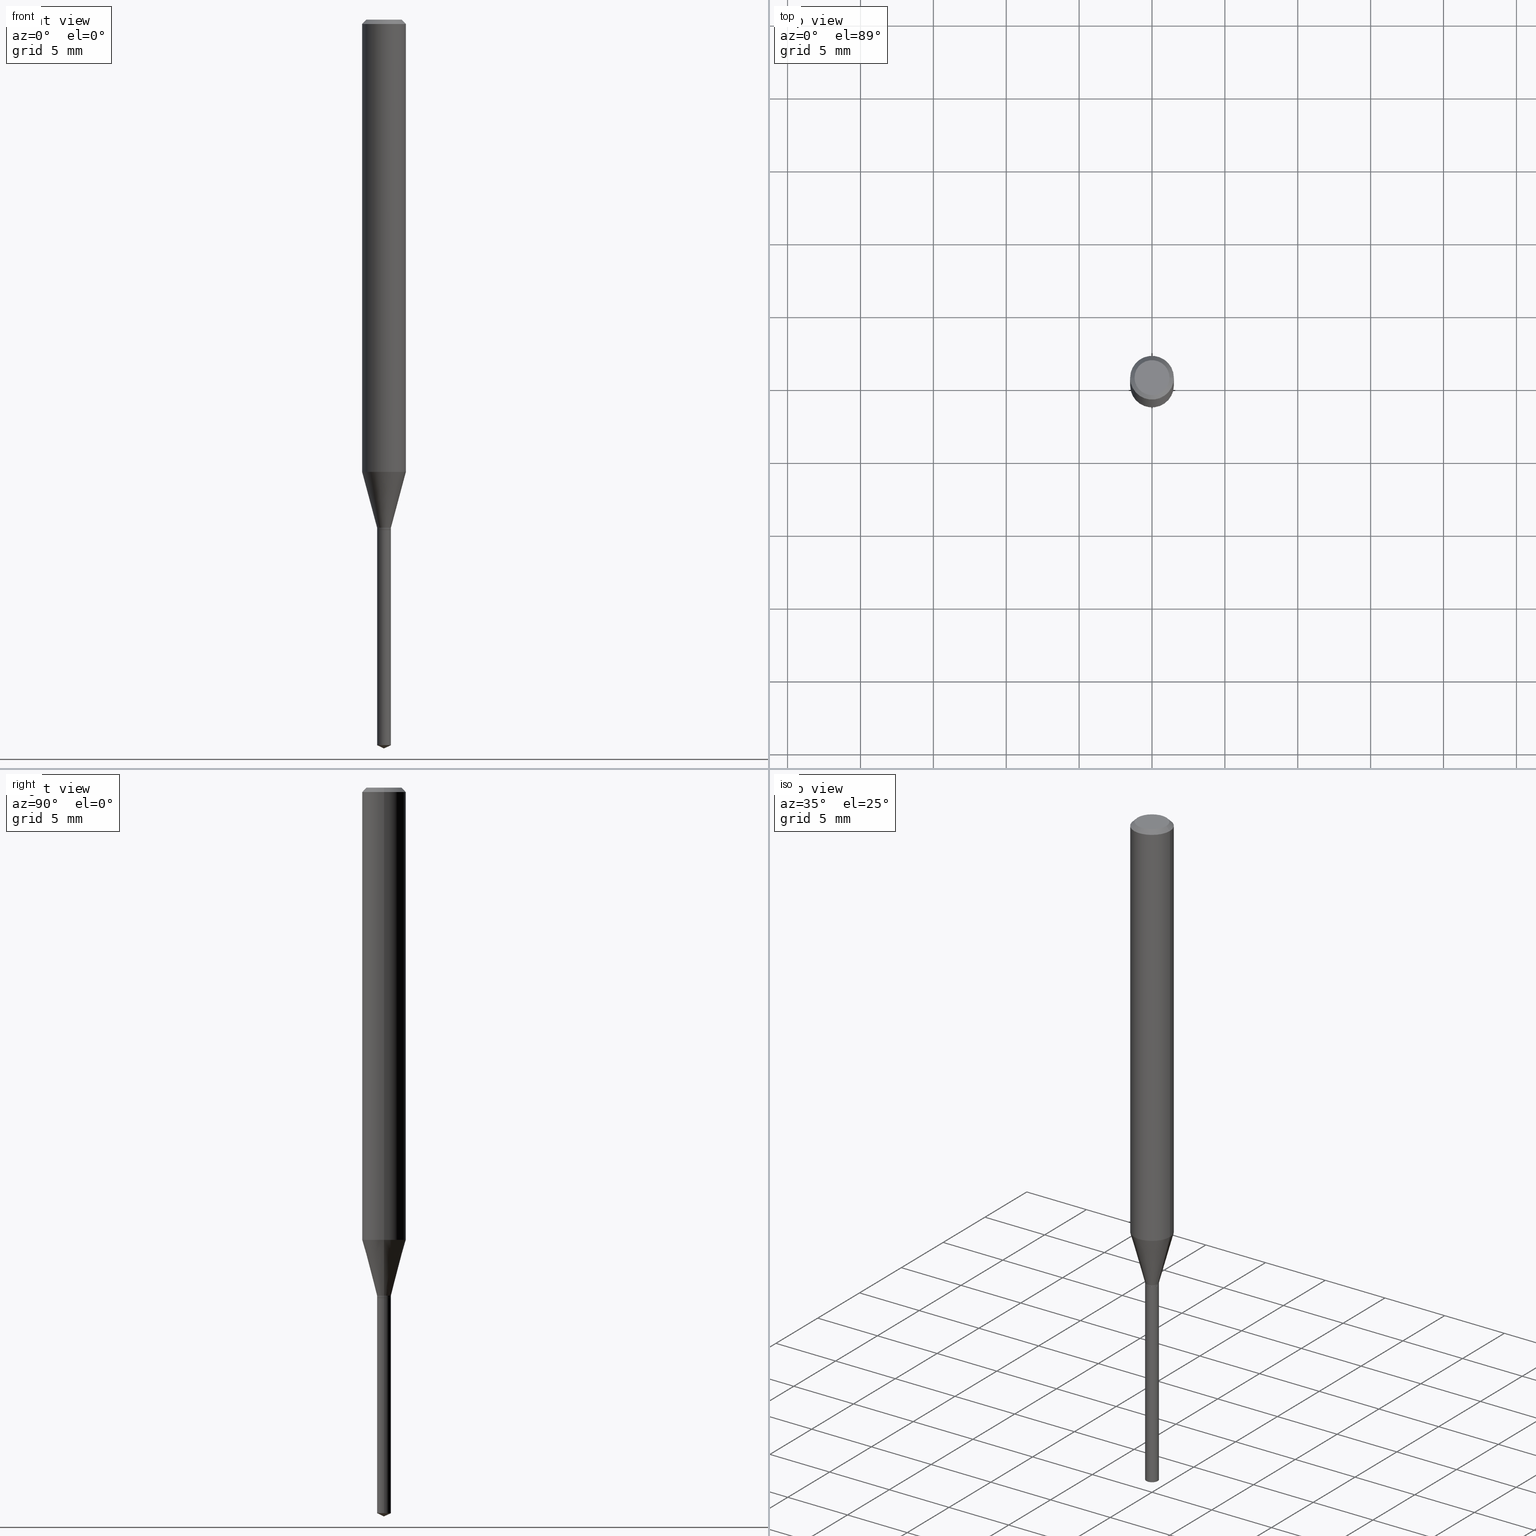
[diagram: canonical four-view strip — front | top / right | iso, engineering-drawing reading convention]
A machine part, canonical four-view strip (front | top / right | iso — engineering-drawing reading convention). The complete STEP part file that produces these views, byte-faithful:
ISO-10303-21;
HEADER;
FILE_DESCRIPTION (( 'STEP AP203' ),
    '1' );
FILE_NAME ('07819.STEP',
    '2024-04-24T03:44:33',
    ( '' ),
    ( '' ),
    'SwSTEP 2.0',
    'SolidWorks 2023',
    '' );
FILE_SCHEMA (( 'CONFIG_CONTROL_DESIGN' ));
ENDSEC;

DATA;
#1 = PERSON_AND_ORGANIZATION ( #255, #261 ) ;
#2 = VERTEX_POINT ( 'NONE', #244 ) ;
#3 = PERSON_AND_ORGANIZATION ( #255, #261 ) ;
#4 = AXIS2_PLACEMENT_3D ( 'NONE', #37, #148, #307 ) ;
#5 = DIRECTION ( 'NONE',  ( -2.445468806185136877E-29, 3.491481338843145188E-15, 1.000000000000000000 ) ) ;
#6 = ADVANCED_FACE ( 'NONE', ( #165 ), #322, .T. ) ;
#7 = VERTEX_POINT ( 'NONE', #313 ) ;
#8 = DATE_AND_TIME ( #380, #439 ) ;
#9 = ORIENTED_EDGE ( 'NONE', *, *, #198, .T. ) ;
#10 = DIRECTION ( 'NONE',  ( 1.000000000000000000, -6.982962677686246989E-15, 0.000000000000000000 ) ) ;
#11 = ORIENTED_EDGE ( 'NONE', *, *, #390, .F. ) ;
#12 = PERSON_AND_ORGANIZATION ( #255, #261 ) ;
#13 = AXIS2_PLACEMENT_3D ( 'NONE', #188, #407, #448 ) ;
#14 = ORIENTED_EDGE ( 'NONE', *, *, #304, .F. ) ;
#15 = CIRCLE ( 'NONE', #467, 0.05905000000000000526 ) ;
#16 = EDGE_CURVE ( 'NONE', #298, #224, #292, .T. ) ;
#17 = ORIENTED_EDGE ( 'NONE', *, *, #304, .T. ) ;
#18 = FACE_OUTER_BOUND ( 'NONE', #332, .T. ) ;
#19 = FACE_OUTER_BOUND ( 'NONE', #272, .T. ) ;
#20 = EDGE_CURVE ( 'NONE', #481, #224, #196, .T. ) ;
#21 = CARTESIAN_POINT ( 'NONE',  ( -0.05905000000000000526, 3.711095515056362547E-16, -0.01181000000000007738 ) ) ;
#22 = DIRECTION ( 'NONE',  ( 1.000000000000000000, -6.982962677686266711E-15, 0.000000000000000000 ) ) ;
#23 = EDGE_LOOP ( 'NONE', ( #286, #131, #60, #392 ) ) ;
#24 = AXIS2_PLACEMENT_3D ( 'NONE', #115, #316, #124 ) ;
#25 = DIRECTION ( 'NONE',  ( -2.445468806185136597E-29, 3.491481338843145583E-15, 1.000000000000000000 ) ) ;
#26 = DIRECTION ( 'NONE',  ( 2.445468806185136597E-29, -3.491481338843145583E-15, -1.000000000000000000 ) ) ;
#27 = CIRCLE ( 'NONE', #308, 0.05905000000000014404 ) ;
#28 = APPLICATION_PROTOCOL_DEFINITION ( 'international standard', 'config_control_design', 1994, #386 ) ;
#29 = MANIFOLD_SOLID_BREP ( 'Body-Move/Copy2[2]', #479 ) ;
#30 = CARTESIAN_POINT ( 'NONE',  ( 0.01870000000000003604, -1.305814020727334220E-16, 9.118450570738417925E-31 ) ) ;
#31 = APPROVAL ( #103, 'UNSPECIFIED' ) ;
#32 = CIRCLE ( 'NONE', #52, 0.04724000000000000421 ) ;
#33 = EDGE_CURVE ( 'NONE', #54, #144, #468, .T. ) ;
#34 = DATE_AND_TIME ( #98, #88 ) ;
#35 = CARTESIAN_POINT ( 'NONE',  ( -0.01870000000000000134, -4.678040645204832139E-15, -1.377900000000000125 ) ) ;
#36 = APPROVAL_STATUS ( 'not_yet_approved' ) ;
#37 = CARTESIAN_POINT ( 'NONE',  ( 3.355916842727862365E-29, -4.791359841294448810E-15, -1.372300000000000075 ) ) ;
#38 = PERSON_AND_ORGANIZATION_ROLE ( 'design_supplier' ) ;
#39 = ORIENTED_EDGE ( 'NONE', *, *, #471, .F. ) ;
#40 = AXIS2_PLACEMENT_3D ( 'NONE', #225, #106, #374 ) ;
#41 = DIRECTION ( 'NONE',  ( -1.000000000000000000, 6.982962677686265922E-15, -4.876176775795935793E-29 ) ) ;
#42 = DIRECTION ( 'NONE',  ( -2.445468806185136877E-29, 3.491481338843145188E-15, 1.000000000000000000 ) ) ;
#43 = CALENDAR_DATE ( 2024, 23, 4 ) ;
#44 = ORIENTED_EDGE ( 'NONE', *, *, #92, .F. ) ;
#45 = DIRECTION ( 'NONE',  ( 2.438088387897960049E-29, -3.491481338843145188E-15, -1.000000000000000000 ) ) ;
#46 = PERSON_AND_ORGANIZATION ( #255, #261 ) ;
#47 = ORIENTED_EDGE ( 'NONE', *, *, #490, .F. ) ;
#48 = FACE_OUTER_BOUND ( 'NONE', #206, .T. ) ;
#49 = ORIENTED_EDGE ( 'NONE', *, *, #181, .F. ) ;
#50 = AXIS2_PLACEMENT_3D ( 'NONE', #179, #215, #437 ) ;
#51 = ORIENTED_EDGE ( 'NONE', *, *, #490, .T. ) ;
#52 = AXIS2_PLACEMENT_3D ( 'NONE', #476, #367, #484 ) ;
#53 = APPLICATION_CONTEXT ( 'configuration controlled 3d designs of mechanical parts and assemblies' ) ;
#54 = VERTEX_POINT ( 'NONE', #171 ) ;
#55 = DIRECTION ( 'NONE',  ( -1.000000000000000000, 6.982962677686267499E-15, 0.000000000000000000 ) ) ;
#56 = DIRECTION ( 'NONE',  ( 1.000000000000000000, -6.982962677686246989E-15, 0.000000000000000000 ) ) ;
#57 = ORIENTED_EDGE ( 'NONE', *, *, #92, .T. ) ;
#58 = DIRECTION ( 'NONE',  ( 1.000000000000000000, -6.982962677686267499E-15, 0.000000000000000000 ) ) ;
#59 = DIRECTION ( 'NONE',  ( -2.445468806185136597E-29, 3.491481338843145583E-15, 1.000000000000000000 ) ) ;
#60 = ORIENTED_EDGE ( 'NONE', *, *, #142, .T. ) ;
#61 = DIRECTION ( 'NONE',  ( -2.445468806185136597E-29, 3.491481338843145583E-15, 1.000000000000000000 ) ) ;
#62 = VECTOR ( 'NONE', #425, 39.37007874015748143 ) ;
#63 = ORIENTED_EDGE ( 'NONE', *, *, #305, .F. ) ;
#64 = CARTESIAN_POINT ( 'NONE',  ( 3.369611468042499724E-29, -4.810912136791970439E-15, -1.377900000000000125 ) ) ;
#65 = ADVANCED_FACE ( 'NONE', ( #19 ), #441, .T. ) ;
#66 = CIRCLE ( 'NONE', #480, 0.05905000000000000526 ) ;
#67 = CIRCLE ( 'NONE', #401, 0.01870000000000003604 ) ;
#68 = DIRECTION ( 'NONE',  ( 1.000000000000000000, -6.982962677686265922E-15, 4.876176775795935793E-29 ) ) ;
#69 = CC_DESIGN_PERSON_AND_ORGANIZATION_ASSIGNMENT ( #1, #166, ( #116 ) ) ;
#70 = ORIENTED_EDGE ( 'NONE', *, *, #270, .T. ) ;
#71 = EDGE_CURVE ( 'NONE', #113, #301, #168, .T. ) ;
#72 = DIRECTION ( 'NONE',  ( -2.445468806185136877E-29, 3.491481338843145188E-15, 1.000000000000000000 ) ) ;
#73 = AXIS2_PLACEMENT_3D ( 'NONE', #223, #230, #68 ) ;
#74 = PERSON_AND_ORGANIZATION_ROLE ( 'design_owner' ) ;
#75 = APPROVAL_ROLE ( '' ) ;
#76 = CARTESIAN_POINT ( 'NONE',  ( 4.132873053354867254E-48, -5.900647395337818946E-34, -1.690012582823346072E-19 ) ) ;
#77 = CC_DESIGN_APPROVAL ( #440, ( #474 ) ) ;
#78 = DATE_AND_TIME ( #417, #412 ) ;
#79 = CONICAL_SURFACE ( 'NONE', #221, 0.01820000000000000090, 0.7853981633978559529 ) ;
#80 = DIRECTION ( 'NONE',  ( 1.000000000000000000, -6.982962677686261977E-15, 0.000000000000000000 ) ) ;
#81 = ORIENTED_EDGE ( 'NONE', *, *, #16, .F. ) ;
#82 = CYLINDRICAL_SURFACE ( 'NONE', #346, 0.01870000000000003604 ) ;
#83 = PRODUCT_RELATED_PRODUCT_CATEGORY ( 'detail', '', ( #211 ) ) ;
#84 = ORIENTED_EDGE ( 'NONE', *, *, #20, .T. ) ;
#85 = LINE ( 'NONE', #239, #375 ) ;
#86 = CARTESIAN_POINT ( 'NONE',  ( -0.04724000000000000421, 3.504923541997677355E-16, -3.380025165670481712E-19 ) ) ;
#87 = DIRECTION ( 'NONE',  ( -2.445468806185136597E-29, 3.491481338843145583E-15, 1.000000000000000000 ) ) ;
#88 = LOCAL_TIME ( 23, 44, 33.00000000000000000, #219 ) ;
#89 = DIRECTION ( 'NONE',  ( -2.445468806185136597E-29, 3.491481338843145583E-15, 1.000000000000000000 ) ) ;
#90 = LINE ( 'NONE', #315, #62 ) ;
#91 = FACE_OUTER_BOUND ( 'NONE', #473, .T. ) ;
#92 = EDGE_CURVE ( 'NONE', #354, #2, #90, .T. ) ;
#93 = ORIENTED_EDGE ( 'NONE', *, *, #162, .F. ) ;
#94 = VECTOR ( 'NONE', #42, 39.37007874015748143 ) ;
#95 = ORIENTED_EDGE ( 'NONE', *, *, #342, .F. ) ;
#96 = CC_DESIGN_PERSON_AND_ORGANIZATION_ASSIGNMENT ( #3, #150, ( #474 ) ) ;
#97 = EDGE_LOOP ( 'NONE', ( #101, #436, #343, #248 ) ) ;
#98 = CALENDAR_DATE ( 2024, 23, 4 ) ;
#99 = ORIENTED_EDGE ( 'NONE', *, *, #329, .T. ) ;
#100 = AXIS2_PLACEMENT_3D ( 'NONE', #232, #309, #350 ) ;
#101 = ORIENTED_EDGE ( 'NONE', *, *, #16, .T. ) ;
#102 = ADVANCED_FACE ( 'NONE', ( #91 ), #79, .T. ) ;
#103 = APPROVAL_STATUS ( 'not_yet_approved' ) ;
#104 = LINE ( 'NONE', #35, #136 ) ;
#105 = EDGE_LOOP ( 'NONE', ( #415, #17, #63, #454 ) ) ;
#106 = DIRECTION ( 'NONE',  ( -2.445468806185136597E-29, 3.491481338843145583E-15, 1.000000000000000000 ) ) ;
#107 = APPROVAL_PERSON_ORGANIZATION ( #227, #31, #376 ) ;
#108 = CIRCLE ( 'NONE', #395, 0.01870000000000000134 ) ;
#109 = FACE_OUTER_BOUND ( 'NONE', #344, .T. ) ;
#110 = CALENDAR_DATE ( 2024, 23, 4 ) ;
#111 = DIRECTION ( 'NONE',  ( -1.000000000000000000, 6.982962677686265922E-15, -4.876176775795935793E-29 ) ) ;
#112 = CARTESIAN_POINT ( 'NONE',  ( -9.146439411113230710E-28, 1.305869142145323662E-13, 37.40157874015748263 ) ) ;
#113 = VERTEX_POINT ( 'NONE', #433 ) ;
#114 = DIMENSIONAL_EXPONENTS ( 1.000000000000000000, 0.000000000000000000, 0.000000000000000000, 0.000000000000000000, 0.000000000000000000, 0.000000000000000000, 0.000000000000000000 ) ;
#115 = CARTESIAN_POINT ( 'NONE',  ( 3.369611468042499724E-29, -4.810912136791970439E-15, -1.377900000000000125 ) ) ;
#116 = PRODUCT_DEFINITION ( 'UNKNOWN', '', #406, #138 ) ;
#117 = CARTESIAN_POINT ( 'NONE',  ( 0.01870000000000003604, -4.921941243367182799E-15, -1.372300000000000075 ) ) ;
#118 = EDGE_CURVE ( 'NONE', #113, #180, #193, .T. ) ;
#119 = PERSON_AND_ORGANIZATION_ROLE ( 'creator' ) ;
#120 = ADVANCED_FACE ( 'NONE', ( #427 ), #226, .T. ) ;
#121 = EDGE_LOOP ( 'NONE', ( #359, #84, #81 ) ) ;
#122 = DIRECTION ( 'NONE',  ( -2.445468806185136597E-29, 3.491481338843145583E-15, 1.000000000000000000 ) ) ;
#123 = CARTESIAN_POINT ( 'NONE',  ( 0.05905000000000000526, -4.463468013801467941E-16, -0.01181000000000007738 ) ) ;
#124 = DIRECTION ( 'NONE',  ( 1.000000000000000000, -6.982962677686274599E-15, 0.000000000000000000 ) ) ;
#125 = DIRECTION ( 'NONE',  ( 0.7071067811865453523, -7.319954787623248157E-15, -0.7071067811865496822 ) ) ;
#126 = ORIENTED_EDGE ( 'NONE', *, *, #342, .T. ) ;
#127 = CC_DESIGN_APPROVAL ( #31, ( #116 ) ) ;
#128 = ORIENTED_EDGE ( 'NONE', *, *, #181, .T. ) ;
#129 = VECTOR ( 'NONE', #405, 39.37007874015748143 ) ;
#130 = CARTESIAN_POINT ( 'NONE',  ( 3.368388733639408604E-29, -4.809166396122550513E-15, -1.377400000000000402 ) ) ;
#131 = ORIENTED_EDGE ( 'NONE', *, *, #235, .T. ) ;
#132 = PRODUCT_DEFINITION_SHAPE ( 'NONE', 'NONE',  #116 ) ;
#133 = ORIENTED_EDGE ( 'NONE', *, *, #413, .F. ) ;
#134 = CARTESIAN_POINT ( 'NONE',  ( 0.04724000000000000421, -3.852183633974369838E-16, -3.380025165621689721E-19 ) ) ;
#135 = AXIS2_PLACEMENT_3D ( 'NONE', #435, #276, #421 ) ;
#136 = VECTOR ( 'NONE', #72, 39.37007874015748143 ) ;
#137 = EDGE_LOOP ( 'NONE', ( #205, #451, #418 ) ) ;
#138 = DESIGN_CONTEXT ( 'detailed design', #53, 'design' ) ;
#139 = CARTESIAN_POINT ( 'NONE',  ( 2.888098660104665518E-31, -4.123439461173782112E-17, -0.01181000000000007738 ) ) ;
#140 = ORIENTED_EDGE ( 'NONE', *, *, #160, .F. ) ;
#141 = DIRECTION ( 'NONE',  ( -2.445468806185136597E-29, 3.491481338843145583E-15, 1.000000000000000000 ) ) ;
#142 = EDGE_CURVE ( 'NONE', #298, #252, #210, .T. ) ;
#143 = CIRCLE ( 'NONE', #174, 0.01870000000000003604 ) ;
#144 = VERTEX_POINT ( 'NONE', #362 ) ;
#145 = DIRECTION ( 'NONE',  ( -2.445468806185136597E-29, 3.491481338843145583E-15, 1.000000000000000000 ) ) ;
#146 = DIRECTION ( 'NONE',  ( -0.7071067811868357866, 7.493145998871395457E-15, 0.7071067811862592478 ) ) ;
#147 = EDGE_CURVE ( 'NONE', #180, #113, #143, .T. ) ;
#148 = DIRECTION ( 'NONE',  ( -2.445468806185136597E-29, 3.491481338843145583E-15, 1.000000000000000000 ) ) ;
#149 =( GEOMETRIC_REPRESENTATION_CONTEXT ( 3 ) GLOBAL_UNCERTAINTY_ASSIGNED_CONTEXT ( ( #274 ) ) GLOBAL_UNIT_ASSIGNED_CONTEXT ( ( #372, #366, #258 ) ) REPRESENTATION_CONTEXT ( 'NONE', 'WORKASPACE' ) );
#150 = PERSON_AND_ORGANIZATION_ROLE ( 'classification_officer' ) ;
#151 = ORIENTED_EDGE ( 'NONE', *, *, #404, .T. ) ;
#152 = FACE_OUTER_BOUND ( 'NONE', #273, .T. ) ;
#153 = ORIENTED_EDGE ( 'NONE', *, *, #147, .F. ) ;
#154 = CYLINDRICAL_SURFACE ( 'NONE', #450, 0.01870000000000003604 ) ;
#155 = CARTESIAN_POINT ( 'NONE',  ( 4.792580971415110270E-29, -6.842535461613166299E-15, -1.959780046792501729 ) ) ;
#156 = DATE_AND_TIME ( #43, #265 ) ;
#157 = ORIENTED_EDGE ( 'NONE', *, *, #71, .T. ) ;
#158 = EDGE_CURVE ( 'NONE', #481, #298, #447, .T. ) ;
#159 = DIRECTION ( 'NONE',  ( -2.445468806185136597E-29, 3.491481338843145583E-15, 1.000000000000000000 ) ) ;
#160 = EDGE_CURVE ( 'NONE', #464, #199, #32, .T. ) ;
#161 = AXIS2_PLACEMENT_3D ( 'NONE', #482, #61, #217 ) ;
#162 = EDGE_CURVE ( 'NONE', #355, #2, #15, .T. ) ;
#163 = ORIENTED_EDGE ( 'NONE', *, *, #423, .T. ) ;
#164 = AXIS2_PLACEMENT_3D ( 'NONE', #197, #341, #10 ) ;
#165 = FACE_OUTER_BOUND ( 'NONE', #121, .T. ) ;
#166 = PERSON_AND_ORGANIZATION_ROLE ( 'creator' ) ;
#167 = DIRECTION ( 'NONE',  ( -2.445468806185136597E-29, 3.491481338843145583E-15, 1.000000000000000000 ) ) ;
#168 = LINE ( 'NONE', #321, #94 ) ;
#169 = VERTEX_POINT ( 'NONE', #259 ) ;
#170 = FACE_OUTER_BOUND ( 'NONE', #23, .T. ) ;
#171 = CARTESIAN_POINT ( 'NONE',  ( 0.01870000000000003604, -4.921941243367182799E-15, -1.372300000000000075 ) ) ;
#172 = VECTOR ( 'NONE', #475, 39.37007874015748143 ) ;
#173 = FACE_OUTER_BOUND ( 'NONE', #351, .T. ) ;
#174 = AXIS2_PLACEMENT_3D ( 'NONE', #483, #141, #295 ) ;
#175 = ADVANCED_FACE ( 'NONE', ( #409 ), #379, .F. ) ;
#176 = EDGE_LOOP ( 'NONE', ( #44, #126, #373, #39 ) ) ;
#177 = CC_DESIGN_PERSON_AND_ORGANIZATION_ASSIGNMENT ( #487, #74, ( #211 ) ) ;
#178 = CONICAL_SURFACE ( 'NONE', #50, 0.05905000000000000526, 0.7853981633974452814 ) ;
#179 = CARTESIAN_POINT ( 'NONE',  ( 2.888098660104665518E-31, -4.123439461173782112E-17, -0.01181000000000007738 ) ) ;
#180 = VERTEX_POINT ( 'NONE', #370 ) ;
#181 = EDGE_CURVE ( 'NONE', #7, #113, #489, .T. ) ;
#182 = DIRECTION ( 'NONE',  ( -2.445468806185136597E-29, 3.491481338843145583E-15, 1.000000000000000000 ) ) ;
#183 = ADVANCED_BREP_SHAPE_REPRESENTATION ( '07819', ( #189, #29, #13 ), #149 ) ;
#184 = MECHANICAL_CONTEXT ( 'NONE', #386, 'mechanical' ) ;
#185 = APPROVAL_PERSON_ORGANIZATION ( #46, #440, #231 ) ;
#186 = DIRECTION ( 'NONE',  ( -2.445468806185136877E-29, 3.491481338843145188E-15, 1.000000000000000000 ) ) ;
#187 = AXIS2_PLACEMENT_3D ( 'NONE', #236, #460, #111 ) ;
#188 = CARTESIAN_POINT ( 'NONE',  ( 0.000000000000000000, 0.000000000000000000, 0.000000000000000000 ) ) ;
#189 = MANIFOLD_SOLID_BREP ( 'Body-Move/Copy2[1]', #466 ) ;
#190 = APPROVAL ( #36, 'UNSPECIFIED' ) ;
#191 = DIRECTION ( 'NONE',  ( -2.445468806185136597E-29, 3.491481338843145583E-15, 1.000000000000000000 ) ) ;
#192 = CIRCLE ( 'NONE', #161, 0.01870000000000000134 ) ;
#193 = CIRCLE ( 'NONE', #420, 0.01870000000000003604 ) ;
#194 = ORIENTED_EDGE ( 'NONE', *, *, #118, .T. ) ;
#195 = CARTESIAN_POINT ( 'NONE',  ( 0.01869999999999999787, -6.973116863685898710E-15, -1.959780046792501729 ) ) ;
#196 = LINE ( 'NONE', #202, #172 ) ;
#197 = CARTESIAN_POINT ( 'NONE',  ( 3.369611468042499724E-29, -4.810912136791970439E-15, -1.377900000000000125 ) ) ;
#198 = EDGE_CURVE ( 'NONE', #464, #355, #411, .T. ) ;
#199 = VERTEX_POINT ( 'NONE', #86 ) ;
#200 = ORIENTED_EDGE ( 'NONE', *, *, #118, .F. ) ;
#201 = CONICAL_SURFACE ( 'NONE', #478, 0.05905000000000000526, 0.7853981633974452814 ) ;
#202 = CARTESIAN_POINT ( 'NONE',  ( 4.813905344975441835E-29, -6.872981015512731707E-15, -1.968500000000000139 ) ) ;
#203 = CIRCLE ( 'NONE', #24, 0.01870000000000000134 ) ;
#204 = ORIENTED_EDGE ( 'NONE', *, *, #423, .F. ) ;
#205 = ORIENTED_EDGE ( 'NONE', *, *, #20, .F. ) ;
#206 = EDGE_LOOP ( 'NONE', ( #241, #194, #260, #280 ) ) ;
#207 = DIRECTION ( 'NONE',  ( -2.445468806185136597E-29, 3.491481338843145583E-15, 1.000000000000000000 ) ) ;
#208 = EDGE_CURVE ( 'NONE', #428, #180, #317, .T. ) ;
#209 = ORIENTED_EDGE ( 'NONE', *, *, #378, .F. ) ;
#210 = LINE ( 'NONE', #326, #129 ) ;
#211 = PRODUCT ( '07819', '07819', '', ( #184 ) ) ;
#212 = ORIENTED_EDGE ( 'NONE', *, *, #33, .T. ) ;
#213 = FACE_OUTER_BOUND ( 'NONE', #97, .T. ) ;
#214 = VECTOR ( 'NONE', #125, 39.37007874015748143 ) ;
#215 = DIRECTION ( 'NONE',  ( 2.445468806185136597E-29, -3.491481338843145583E-15, -1.000000000000000000 ) ) ;
#216 = ADVANCED_FACE ( 'NONE', ( #257 ), #229, .T. ) ;
#217 = DIRECTION ( 'NONE',  ( 1.000000000000000000, -6.982962677686274599E-15, 0.000000000000000000 ) ) ;
#218 = APPROVAL_PERSON_ORGANIZATION ( #414, #190, #75 ) ;
#219 = COORDINATED_UNIVERSAL_TIME_OFFSET ( 5, 0, .BEHIND. ) ;
#220 = CC_DESIGN_DATE_AND_TIME_ASSIGNMENT ( #78, #234, ( #474 ) ) ;
#221 = AXIS2_PLACEMENT_3D ( 'NONE', #399, #282, #56 ) ;
#222 = DIRECTION ( 'NONE',  ( 0.9063077870366507138, -4.853149677051390623E-15, 0.4226182617406978315 ) ) ;
#223 = CARTESIAN_POINT ( 'NONE',  ( 3.369611468042499724E-29, -4.810912136791970439E-15, -1.377900000000000125 ) ) ;
#224 = VERTEX_POINT ( 'NONE', #408 ) ;
#225 = CARTESIAN_POINT ( 'NONE',  ( 8.265746106709734507E-48, -1.180129479067563789E-33, -3.380025165646692144E-19 ) ) ;
#226 = CONICAL_SURFACE ( 'NONE', #302, 84.42940631927434936, 1.134464013796316006 ) ;
#227 = PERSON_AND_ORGANIZATION ( #255, #261 ) ;
#228 = EDGE_CURVE ( 'NONE', #180, #54, #369, .T. ) ;
#229 = CYLINDRICAL_SURFACE ( 'NONE', #432, 0.05905000000000007465 ) ;
#230 = DIRECTION ( 'NONE',  ( -2.438088387897960049E-29, 3.491481338843145188E-15, 1.000000000000000000 ) ) ;
#231 = APPROVAL_ROLE ( '' ) ;
#232 = CARTESIAN_POINT ( 'NONE',  ( 2.987657974566000511E-29, -4.265583776272215205E-15, -1.221711749914595746 ) ) ;
#233 = AXIS2_PLACEMENT_3D ( 'NONE', #472, #122, #277 ) ;
#234 = DATE_TIME_ROLE ( 'classification_date' ) ;
#235 = EDGE_CURVE ( 'NONE', #224, #298, #108, .T. ) ;
#236 = CARTESIAN_POINT ( 'NONE',  ( 3.369611468042499724E-29, -4.810912136791970439E-15, -1.377900000000000125 ) ) ;
#237 = FACE_OUTER_BOUND ( 'NONE', #278, .T. ) ;
#238 = DIRECTION ( 'NONE',  ( 1.000000000000000000, -6.982962677686274599E-15, 0.000000000000000000 ) ) ;
#239 = CARTESIAN_POINT ( 'NONE',  ( -0.01870000000000003604, -4.658488349707310510E-15, -1.372300000000000075 ) ) ;
#240 = AXIS2_PLACEMENT_3D ( 'NONE', #434, #25, #477 ) ;
#241 = ORIENTED_EDGE ( 'NONE', *, *, #71, .F. ) ;
#242 = CIRCLE ( 'NONE', #100, 0.05905000000000014404 ) ;
#243 = CARTESIAN_POINT ( 'NONE',  ( 0.05905000000000000526, -4.535783407291119586E-16, -0.01181000000000007738 ) ) ;
#244 = CARTESIAN_POINT ( 'NONE',  ( -0.05905000000000000526, -1.733833599975635790E-15, -0.01181000000000007738 ) ) ;
#245 = CARTESIAN_POINT ( 'NONE',  ( 2.888098660104665518E-31, -4.123439461173782112E-17, -0.01181000000000007738 ) ) ;
#246 = DIRECTION ( 'NONE',  ( -2.445468806185136597E-29, 3.491481338843145583E-15, 1.000000000000000000 ) ) ;
#247 = DIRECTION ( 'NONE',  ( -2.445468806185136597E-29, 3.491481338843145583E-15, 1.000000000000000000 ) ) ;
#248 = ORIENTED_EDGE ( 'NONE', *, *, #142, .F. ) ;
#249 = LINE ( 'NONE', #21, #383 ) ;
#250 = ADVANCED_FACE ( 'NONE', ( #303 ), #251, .T. ) ;
#251 = CONICAL_SURFACE ( 'NONE', #283, 0.01870000000000003604, 0.2617993877991500740 ) ;
#252 = VERTEX_POINT ( 'NONE', #330 ) ;
#253 = DIRECTION ( 'NONE',  ( -2.445468806185136597E-29, 3.491481338843145583E-15, 1.000000000000000000 ) ) ;
#254 = CARTESIAN_POINT ( 'NONE',  ( 4.813905344975441835E-29, -6.872981015512731707E-15, -1.968500000000000139 ) ) ;
#255 = PERSON ( 'UNSPECIFIED', 'UNSPECIFIED', 'UNSPECIFIED', ('UNSPECIFIED'), ('UNSPECIFIED'), ('UNSPECIFIED') ) ;
#256 = CIRCLE ( 'NONE', #394, 0.01820000000000000090 ) ;
#257 = FACE_OUTER_BOUND ( 'NONE', #176, .T. ) ;
#258 =( NAMED_UNIT ( * ) SI_UNIT ( $, .STERADIAN. ) SOLID_ANGLE_UNIT ( ) );
#259 = CARTESIAN_POINT ( 'NONE',  ( -0.01870000000000000134, -5.693852307615430069E-15, -1.377900000000000125 ) ) ;
#260 = ORIENTED_EDGE ( 'NONE', *, *, #228, .T. ) ;
#261 = ORGANIZATION ( 'UNSPECIFIED', 'UNSPECIFIED', '' ) ;
#262 = EDGE_CURVE ( 'NONE', #224, #169, #104, .T. ) ;
#263 = FACE_OUTER_BOUND ( 'NONE', #312, .T. ) ;
#264 = VECTOR ( 'NONE', #319, 39.37007874015748143 ) ;
#265 = LOCAL_TIME ( 23, 44, 33.00000000000000000, #426 ) ;
#266 = COORDINATED_UNIVERSAL_TIME_OFFSET ( 5, 0, .BEHIND. ) ;
#267 = DATE_AND_TIME ( #110, #320 ) ;
#268 = ORIENTED_EDGE ( 'NONE', *, *, #270, .F. ) ;
#269 = CYLINDRICAL_SURFACE ( 'NONE', #233, 0.05905000000000007465 ) ;
#270 = EDGE_CURVE ( 'NONE', #199, #464, #365, .T. ) ;
#271 = CARTESIAN_POINT ( 'NONE',  ( -0.01870000000000003604, -4.667391627121360572E-15, -1.372300000000000075 ) ) ;
#272 = EDGE_LOOP ( 'NONE', ( #445, #128, #153, #323 ) ) ;
#273 = EDGE_LOOP ( 'NONE', ( #99, #151 ) ) ;
#274 = UNCERTAINTY_MEASURE_WITH_UNIT (LENGTH_MEASURE( 1.000000000000000082E-05 ), #372, 'distance_accuracy_value', 'NONE');
#275 = PLANE ( 'NONE',  #187 ) ;
#276 = DIRECTION ( 'NONE',  ( -2.445468806185136597E-29, 3.491481338843145583E-15, 1.000000000000000000 ) ) ;
#277 = DIRECTION ( 'NONE',  ( 1.000000000000000000, -6.982962677686266711E-15, 4.876176775795936353E-29 ) ) ;
#278 = EDGE_LOOP ( 'NONE', ( #70, #306 ) ) ;
#279 = DIRECTION ( 'NONE',  ( 0.2588190451025213501, 1.565188264969621968E-15, 0.9659258262890682012 ) ) ;
#280 = ORIENTED_EDGE ( 'NONE', *, *, #345, .F. ) ;
#281 = PLANE ( 'NONE',  #457 ) ;
#282 = DIRECTION ( 'NONE',  ( -2.445468806185136597E-29, 3.491481338843145583E-15, 1.000000000000000000 ) ) ;
#283 = AXIS2_PLACEMENT_3D ( 'NONE', #377, #381, #453 ) ;
#284 = DIRECTION ( 'NONE',  ( 1.000000000000000000, -6.982962677686274599E-15, 0.000000000000000000 ) ) ;
#285 = DIRECTION ( 'NONE',  ( -2.445468806185136597E-29, 3.491481338843145583E-15, 1.000000000000000000 ) ) ;
#286 = ORIENTED_EDGE ( 'NONE', *, *, #262, .F. ) ;
#287 = CARTESIAN_POINT ( 'NONE',  ( 3.355916842727862365E-29, -4.791359841294448810E-15, -1.372300000000000075 ) ) ;
#288 = ADVANCED_FACE ( 'NONE', ( #263 ), #314, .T. ) ;
#289 = FACE_OUTER_BOUND ( 'NONE', #296, .T. ) ;
#290 = CARTESIAN_POINT ( 'NONE',  ( 2.888098660104665518E-31, -4.123439461173782112E-17, -0.01181000000000007738 ) ) ;
#291 = CC_DESIGN_APPROVAL ( #190, ( #406 ) ) ;
#292 = CIRCLE ( 'NONE', #385, 0.01870000000000000134 ) ;
#293 = ORIENTED_EDGE ( 'NONE', *, *, #198, .F. ) ;
#294 = DIRECTION ( 'NONE',  ( 1.000000000000000000, -6.982962677686246989E-15, 0.000000000000000000 ) ) ;
#295 = DIRECTION ( 'NONE',  ( 1.000000000000000000, -6.982962677686261977E-15, 0.000000000000000000 ) ) ;
#296 = EDGE_LOOP ( 'NONE', ( #140, #9, #443, #47 ) ) ;
#297 = ADVANCED_FACE ( 'NONE', ( #109 ), #269, .T. ) ;
#298 = VERTEX_POINT ( 'NONE', #195 ) ;
#299 = ADVANCED_FACE ( 'NONE', ( #48 ), #82, .T. ) ;
#300 = CIRCLE ( 'NONE', #364, 0.01870000000000003604 ) ;
#301 = VERTEX_POINT ( 'NONE', #271 ) ;
#302 = AXIS2_PLACEMENT_3D ( 'NONE', #396, #285, #462 ) ;
#303 = FACE_OUTER_BOUND ( 'NONE', #105, .T. ) ;
#304 = EDGE_CURVE ( 'NONE', #301, #354, #85, .T. ) ;
#305 = EDGE_CURVE ( 'NONE', #144, #354, #242, .T. ) ;
#306 = ORIENTED_EDGE ( 'NONE', *, *, #160, .T. ) ;
#307 = DIRECTION ( 'NONE',  ( 1.000000000000000000, -6.982962677686261977E-15, 0.000000000000000000 ) ) ;
#308 = AXIS2_PLACEMENT_3D ( 'NONE', #429, #191, #384 ) ;
#309 = DIRECTION ( 'NONE',  ( -2.445468806185136597E-29, 3.491481338843145583E-15, 1.000000000000000000 ) ) ;
#310 = COORDINATED_UNIVERSAL_TIME_OFFSET ( 5, 0, .BEHIND. ) ;
#311 = SHAPE_DEFINITION_REPRESENTATION ( #132, #183 ) ;
#312 = EDGE_LOOP ( 'NONE', ( #14, #485, #212, #95 ) ) ;
#313 = CARTESIAN_POINT ( 'NONE',  ( -0.01820000000000000090, -4.678944131709522625E-15, -1.377900000000000125 ) ) ;
#314 = CONICAL_SURFACE ( 'NONE', #4, 0.01870000000000003604, 0.2617993877991500740 ) ;
#315 = CARTESIAN_POINT ( 'NONE',  ( -0.05905000000000007465, 4.195754854663396902E-16, -2.904631170795525395E-30 ) ) ;
#316 = DIRECTION ( 'NONE',  ( -2.445468806185136597E-29, 3.491481338843145583E-15, 1.000000000000000000 ) ) ;
#317 = LINE ( 'NONE', #431, #264 ) ;
#318 = ORIENTED_EDGE ( 'NONE', *, *, #228, .F. ) ;
#319 = DIRECTION ( 'NONE',  ( 0.7071067811868357866, -2.468850131085276426E-15, 0.7071067811862592478 ) ) ;
#320 = LOCAL_TIME ( 23, 44, 33.00000000000000000, #389 ) ;
#321 = CARTESIAN_POINT ( 'NONE',  ( -0.01870000000000003604, 1.328714915871389908E-16, -9.198408618776690967E-31 ) ) ;
#322 = CONICAL_SURFACE ( 'NONE', #327, 84.42940631927434936, 1.134464013796316006 ) ;
#323 = ORIENTED_EDGE ( 'NONE', *, *, #208, .F. ) ;
#324 = CARTESIAN_POINT ( 'NONE',  ( 4.813905344975441835E-29, -6.872981015512731707E-15, -1.968500000000000139 ) ) ;
#325 = ADVANCED_FACE ( 'NONE', ( #18 ), #154, .T. ) ;
#326 = CARTESIAN_POINT ( 'NONE',  ( 0.01870000000000000134, -4.941493538864703639E-15, -1.377900000000000125 ) ) ;
#327 = AXIS2_PLACEMENT_3D ( 'NONE', #112, #246, #22 ) ;
#328 = VECTOR ( 'NONE', #222, 39.37007874015748143 ) ;
#329 = EDGE_CURVE ( 'NONE', #252, #169, #203, .T. ) ;
#330 = CARTESIAN_POINT ( 'NONE',  ( 0.01870000000000000134, -4.941493538864703639E-15, -1.377900000000000125 ) ) ;
#331 = APPLICATION_PROTOCOL_DEFINITION ( 'international standard', 'config_control_design', 1994, #53 ) ;
#332 = EDGE_LOOP ( 'NONE', ( #388, #157, #133, #318 ) ) ;
#333 = ADVANCED_FACE ( 'NONE', ( #237 ), #281, .F. ) ;
#334 = CARTESIAN_POINT ( 'NONE',  ( 0.000000000000000000, 0.000000000000000000, 0.000000000000000000 ) ) ;
#335 = APPROVAL_DATE_TIME ( #34, #31 ) ;
#336 = DATE_TIME_ROLE ( 'creation_date' ) ;
#337 = CARTESIAN_POINT ( 'NONE',  ( 0.05905000000000007465, -4.123439461173745750E-16, 2.879382386107504074E-30 ) ) ;
#338 = CIRCLE ( 'NONE', #164, 0.01820000000000000090 ) ;
#339 = CARTESIAN_POINT ( 'NONE',  ( 3.355916842727862365E-29, -4.791359841294448810E-15, -1.372300000000000075 ) ) ;
#340 = DIRECTION ( 'NONE',  ( -2.445468806185136597E-29, 3.491481338843145583E-15, 1.000000000000000000 ) ) ;
#341 = DIRECTION ( 'NONE',  ( -2.445468806185136597E-29, 3.491481338843145583E-15, 1.000000000000000000 ) ) ;
#342 = EDGE_CURVE ( 'NONE', #354, #144, #27, .T. ) ;
#343 = ORIENTED_EDGE ( 'NONE', *, *, #329, .F. ) ;
#344 = EDGE_LOOP ( 'NONE', ( #438, #57, #93, #11 ) ) ;
#345 = EDGE_CURVE ( 'NONE', #301, #54, #67, .T. ) ;
#346 = AXIS2_PLACEMENT_3D ( 'NONE', #416, #159, #465 ) ;
#347 = ADVANCED_FACE ( 'NONE', ( #152 ), #275, .F. ) ;
#348 = DIRECTION ( 'NONE',  ( 1.000000000000000000, -6.982962677686261977E-15, 0.000000000000000000 ) ) ;
#349 = VECTOR ( 'NONE', #186, 39.37007874015748143 ) ;
#350 = DIRECTION ( 'NONE',  ( 1.000000000000000000, -6.982962677686272233E-15, 0.000000000000000000 ) ) ;
#351 = EDGE_LOOP ( 'NONE', ( #293, #268, #51, #352 ) ) ;
#352 = ORIENTED_EDGE ( 'NONE', *, *, #471, .T. ) ;
#353 = CYLINDRICAL_SURFACE ( 'NONE', #240, 0.01870000000000000134 ) ;
#354 = VERTEX_POINT ( 'NONE', #391 ) ;
#355 = VERTEX_POINT ( 'NONE', #243 ) ;
#356 = DIRECTION ( 'NONE',  ( -2.445468806185136597E-29, 3.491481338843145583E-15, 1.000000000000000000 ) ) ;
#357 = DIRECTION ( 'NONE',  ( 1.000000000000000000, -6.982962677686267499E-15, 0.000000000000000000 ) ) ;
#358 = VECTOR ( 'NONE', #146, 39.37007874015748143 ) ;
#359 = ORIENTED_EDGE ( 'NONE', *, *, #158, .F. ) ;
#360 = CYLINDRICAL_SURFACE ( 'NONE', #371, 0.01870000000000000134 ) ;
#361 = DIRECTION ( 'NONE',  ( -0.7071067811865453523, 2.468850131082234184E-15, -0.7071067811865496822 ) ) ;
#362 = CARTESIAN_POINT ( 'NONE',  ( 0.05905000000000014404, -4.677927722389590125E-15, -1.221711749914595746 ) ) ;
#363 = DIRECTION ( 'NONE',  ( 1.000000000000000000, -6.982962677686261977E-15, 0.000000000000000000 ) ) ;
#364 = AXIS2_PLACEMENT_3D ( 'NONE', #287, #253, #363 ) ;
#365 = CIRCLE ( 'NONE', #40, 0.04724000000000000421 ) ;
#366 =( NAMED_UNIT ( * ) PLANE_ANGLE_UNIT ( ) SI_UNIT ( $, .RADIAN. ) );
#367 = DIRECTION ( 'NONE',  ( -2.445468806185136597E-29, 3.491481338843145583E-15, 1.000000000000000000 ) ) ;
#368 = CARTESIAN_POINT ( 'NONE',  ( -0.01820000000000000090, -4.681593358883632248E-15, -1.377900000000000125 ) ) ;
#369 = LINE ( 'NONE', #30, #349 ) ;
#370 = CARTESIAN_POINT ( 'NONE',  ( 0.01870000000000003604, -4.939747798195283713E-15, -1.377400000000000402 ) ) ;
#371 = AXIS2_PLACEMENT_3D ( 'NONE', #400, #207, #284 ) ;
#372 =( CONVERSION_BASED_UNIT ( 'INCH', #452 ) LENGTH_UNIT ( ) NAMED_UNIT ( #114 ) );
#373 = ORIENTED_EDGE ( 'NONE', *, *, #390, .T. ) ;
#374 = DIRECTION ( 'NONE',  ( 1.000000000000000000, -6.982962677686266711E-15, 4.876185090822587894E-29 ) ) ;
#375 = VECTOR ( 'NONE', #393, 39.37007874015747433 ) ;
#376 = APPROVAL_ROLE ( '' ) ;
#377 = CARTESIAN_POINT ( 'NONE',  ( 3.355916842727862365E-29, -4.791359841294448810E-15, -1.372300000000000075 ) ) ;
#378 = EDGE_CURVE ( 'NONE', #428, #7, #338, .T. ) ;
#379 = PLANE ( 'NONE',  #73 ) ;
#380 = CALENDAR_DATE ( 2024, 23, 4 ) ;
#381 = DIRECTION ( 'NONE',  ( -2.445468806185136597E-29, 3.491481338843145583E-15, 1.000000000000000000 ) ) ;
#382 = APPROVAL_DATE_TIME ( #156, #440 ) ;
#383 = VECTOR ( 'NONE', #361, 39.37007874015748143 ) ;
#384 = DIRECTION ( 'NONE',  ( 1.000000000000000000, -6.982962677686272233E-15, 0.000000000000000000 ) ) ;
#385 = AXIS2_PLACEMENT_3D ( 'NONE', #155, #87, #238 ) ;
#386 = APPLICATION_CONTEXT ( 'configuration controlled 3d designs of mechanical parts and assemblies' ) ;
#387 = APPROVAL_STATUS ( 'not_yet_approved' ) ;
#388 = ORIENTED_EDGE ( 'NONE', *, *, #147, .T. ) ;
#389 = COORDINATED_UNIVERSAL_TIME_OFFSET ( 5, 0, .BEHIND. ) ;
#390 = EDGE_CURVE ( 'NONE', #144, #355, #397, .T. ) ;
#391 = CARTESIAN_POINT ( 'NONE',  ( -0.05905000000000014404, -3.846008290805875712E-15, -1.221711749914595746 ) ) ;
#392 = ORIENTED_EDGE ( 'NONE', *, *, #404, .F. ) ;
#393 = DIRECTION ( 'NONE',  ( -0.2588190451025213501, 5.211531920934551042E-15, 0.9659258262890682012 ) ) ;
#394 = AXIS2_PLACEMENT_3D ( 'NONE', #64, #356, #294 ) ;
#395 = AXIS2_PLACEMENT_3D ( 'NONE', #455, #145, #410 ) ;
#396 = CARTESIAN_POINT ( 'NONE',  ( -9.146439411113230710E-28, 1.305869142145323662E-13, 37.40157874015748263 ) ) ;
#397 = LINE ( 'NONE', #337, #430 ) ;
#398 = CC_DESIGN_DATE_AND_TIME_ASSIGNMENT ( #8, #336, ( #116 ) ) ;
#399 = CARTESIAN_POINT ( 'NONE',  ( 3.369611468042499724E-29, -4.810912136791970439E-15, -1.377900000000000125 ) ) ;
#400 = CARTESIAN_POINT ( 'NONE',  ( 3.369611468042499724E-29, -4.810912136791970439E-15, -1.377900000000000125 ) ) ;
#401 = AXIS2_PLACEMENT_3D ( 'NONE', #339, #89, #80 ) ;
#402 = CC_DESIGN_PERSON_AND_ORGANIZATION_ASSIGNMENT ( #470, #38, ( #406 ) ) ;
#403 = CARTESIAN_POINT ( 'NONE',  ( 0.01820000000000000090, -4.938002057525859843E-15, -1.377900000000000125 ) ) ;
#404 = EDGE_CURVE ( 'NONE', #169, #252, #192, .T. ) ;
#405 = DIRECTION ( 'NONE',  ( -2.445468806185136877E-29, 3.491481338843145188E-15, 1.000000000000000000 ) ) ;
#406 = PRODUCT_DEFINITION_FORMATION_WITH_SPECIFIED_SOURCE ( 'ANY', '', #211, .NOT_KNOWN. ) ;
#407 = DIRECTION ( 'NONE',  ( 0.000000000000000000, 0.000000000000000000, 1.000000000000000000 ) ) ;
#408 = CARTESIAN_POINT ( 'NONE',  ( -0.01869999999999999787, -6.709663970026027210E-15, -1.959780046792501729 ) ) ;
#409 = FACE_OUTER_BOUND ( 'NONE', #424, .T. ) ;
#410 = DIRECTION ( 'NONE',  ( 1.000000000000000000, -6.982962677686274599E-15, 0.000000000000000000 ) ) ;
#411 = LINE ( 'NONE', #123, #214 ) ;
#412 = LOCAL_TIME ( 23, 44, 33.00000000000000000, #266 ) ;
#413 = EDGE_CURVE ( 'NONE', #54, #301, #300, .T. ) ;
#414 = PERSON_AND_ORGANIZATION ( #255, #261 ) ;
#415 = ORIENTED_EDGE ( 'NONE', *, *, #413, .T. ) ;
#416 = CARTESIAN_POINT ( 'NONE',  ( 0.000000000000000000, 0.000000000000000000, 0.000000000000000000 ) ) ;
#417 = CALENDAR_DATE ( 2024, 23, 4 ) ;
#418 = ORIENTED_EDGE ( 'NONE', *, *, #235, .F. ) ;
#419 = DIRECTION ( 'NONE',  ( 1.000000000000000000, -6.982962677686265922E-15, 4.876176775795935793E-29 ) ) ;
#420 = AXIS2_PLACEMENT_3D ( 'NONE', #130, #340, #348 ) ;
#421 = DIRECTION ( 'NONE',  ( 1.000000000000000000, -6.982962677686246989E-15, 0.000000000000000000 ) ) ;
#422 = APPROVAL_DATE_TIME ( #267, #190 ) ;
#423 = EDGE_CURVE ( 'NONE', #7, #428, #256, .T. ) ;
#424 = EDGE_LOOP ( 'NONE', ( #209, #204 ) ) ;
#425 = DIRECTION ( 'NONE',  ( -2.445468806185136877E-29, 3.491481338843145188E-15, 1.000000000000000000 ) ) ;
#426 = COORDINATED_UNIVERSAL_TIME_OFFSET ( 5, 0, .BEHIND. ) ;
#427 = FACE_OUTER_BOUND ( 'NONE', #137, .T. ) ;
#428 = VERTEX_POINT ( 'NONE', #403 ) ;
#429 = CARTESIAN_POINT ( 'NONE',  ( 2.987657974566000511E-29, -4.265583776272215205E-15, -1.221711749914595746 ) ) ;
#430 = VECTOR ( 'NONE', #5, 39.37007874015748143 ) ;
#431 = CARTESIAN_POINT ( 'NONE',  ( 0.01820000000000000090, -4.938002057525859843E-15, -1.377900000000000125 ) ) ;
#432 = AXIS2_PLACEMENT_3D ( 'NONE', #334, #182, #486 ) ;
#433 = CARTESIAN_POINT ( 'NONE',  ( -0.01870000000000003604, -4.667391627121360572E-15, -1.377400000000000402 ) ) ;
#434 = CARTESIAN_POINT ( 'NONE',  ( 3.369611468042499724E-29, -4.810912136791970439E-15, -1.377900000000000125 ) ) ;
#435 = CARTESIAN_POINT ( 'NONE',  ( 3.369611468042499724E-29, -4.810912136791970439E-15, -1.377900000000000125 ) ) ;
#436 = ORIENTED_EDGE ( 'NONE', *, *, #262, .T. ) ;
#437 = DIRECTION ( 'NONE',  ( -1.000000000000000000, 6.982962677686267499E-15, 0.000000000000000000 ) ) ;
#438 = ORIENTED_EDGE ( 'NONE', *, *, #305, .T. ) ;
#439 = LOCAL_TIME ( 23, 44, 33.00000000000000000, #310 ) ;
#440 = APPROVAL ( #387, 'UNSPECIFIED' ) ;
#441 = CONICAL_SURFACE ( 'NONE', #135, 0.01820000000000000090, 0.7853981633978559529 ) ;
#442 = ADVANCED_FACE ( 'NONE', ( #173 ), #201, .T. ) ;
#443 = ORIENTED_EDGE ( 'NONE', *, *, #162, .T. ) ;
#444 = ADVANCED_FACE ( 'NONE', ( #170 ), #360, .T. ) ;
#445 = ORIENTED_EDGE ( 'NONE', *, *, #378, .T. ) ;
#446 =( LENGTH_UNIT ( ) NAMED_UNIT ( * ) SI_UNIT ( $, .METRE. ) );
#447 = LINE ( 'NONE', #254, #328 ) ;
#448 = DIRECTION ( 'NONE',  ( 1.000000000000000000, 0.000000000000000000, 0.000000000000000000 ) ) ;
#449 = VECTOR ( 'NONE', #279, 39.37007874015747433 ) ;
#450 = AXIS2_PLACEMENT_3D ( 'NONE', #459, #167, #419 ) ;
#451 = ORIENTED_EDGE ( 'NONE', *, *, #158, .T. ) ;
#452 = LENGTH_MEASURE_WITH_UNIT ( LENGTH_MEASURE( 0.02539999999999999897 ), #446 );
#453 = DIRECTION ( 'NONE',  ( 1.000000000000000000, -6.982962677686261977E-15, 0.000000000000000000 ) ) ;
#454 = ORIENTED_EDGE ( 'NONE', *, *, #33, .F. ) ;
#455 = CARTESIAN_POINT ( 'NONE',  ( 4.792580971415110270E-29, -6.842535461613166299E-15, -1.959780046792501729 ) ) ;
#456 = CC_DESIGN_PERSON_AND_ORGANIZATION_ASSIGNMENT ( #12, #119, ( #406 ) ) ;
#457 = AXIS2_PLACEMENT_3D ( 'NONE', #76, #45, #41 ) ;
#458 = SECURITY_CLASSIFICATION_LEVEL ( 'unclassified' ) ;
#459 = CARTESIAN_POINT ( 'NONE',  ( 0.000000000000000000, 0.000000000000000000, 0.000000000000000000 ) ) ;
#460 = DIRECTION ( 'NONE',  ( 2.438088387897960049E-29, -3.491481338843145188E-15, -1.000000000000000000 ) ) ;
#461 = ADVANCED_FACE ( 'NONE', ( #213 ), #353, .T. ) ;
#462 = DIRECTION ( 'NONE',  ( 1.000000000000000000, -6.982962677686266711E-15, 0.000000000000000000 ) ) ;
#463 = CC_DESIGN_SECURITY_CLASSIFICATION ( #474, ( #406 ) ) ;
#464 = VERTEX_POINT ( 'NONE', #134 ) ;
#465 = DIRECTION ( 'NONE',  ( 1.000000000000000000, -6.982962677686265922E-15, 4.876176775795935793E-29 ) ) ;
#466 = CLOSED_SHELL ( 'NONE', ( #461, #6, #120, #444, #347 ) ) ;
#467 = AXIS2_PLACEMENT_3D ( 'NONE', #290, #59, #357 ) ;
#468 = LINE ( 'NONE', #117, #449 ) ;
#469 = ORIENTED_EDGE ( 'NONE', *, *, #208, .T. ) ;
#470 = PERSON_AND_ORGANIZATION ( #255, #261 ) ;
#471 = EDGE_CURVE ( 'NONE', #2, #355, #66, .T. ) ;
#472 = CARTESIAN_POINT ( 'NONE',  ( 0.000000000000000000, 0.000000000000000000, 0.000000000000000000 ) ) ;
#473 = EDGE_LOOP ( 'NONE', ( #49, #163, #469, #200 ) ) ;
#474 = SECURITY_CLASSIFICATION ( '', '', #458 ) ;
#475 = DIRECTION ( 'NONE',  ( -0.9063077870366507138, 7.915267918739014631E-15, 0.4226182617406978315 ) ) ;
#476 = CARTESIAN_POINT ( 'NONE',  ( 8.265746106709734507E-48, -1.180129479067563789E-33, -3.380025165646692144E-19 ) ) ;
#477 = DIRECTION ( 'NONE',  ( 1.000000000000000000, -6.982962677686274599E-15, 0.000000000000000000 ) ) ;
#478 = AXIS2_PLACEMENT_3D ( 'NONE', #139, #26, #55 ) ;
#479 = CLOSED_SHELL ( 'NONE', ( #65, #488, #297, #250, #325, #299, #288, #216, #442, #333, #175, #102 ) ) ;
#480 = AXIS2_PLACEMENT_3D ( 'NONE', #245, #247, #58 ) ;
#481 = VERTEX_POINT ( 'NONE', #324 ) ;
#482 = CARTESIAN_POINT ( 'NONE',  ( 3.369611468042499724E-29, -4.810912136791970439E-15, -1.377900000000000125 ) ) ;
#483 = CARTESIAN_POINT ( 'NONE',  ( 3.368388733639408604E-29, -4.809166396122550513E-15, -1.377400000000000402 ) ) ;
#484 = DIRECTION ( 'NONE',  ( 1.000000000000000000, -6.982962677686266711E-15, 4.876185090822587894E-29 ) ) ;
#485 = ORIENTED_EDGE ( 'NONE', *, *, #345, .T. ) ;
#486 = DIRECTION ( 'NONE',  ( 1.000000000000000000, -6.982962677686266711E-15, 4.876176775795936353E-29 ) ) ;
#487 = PERSON_AND_ORGANIZATION ( #255, #261 ) ;
#488 = ADVANCED_FACE ( 'NONE', ( #289 ), #178, .T. ) ;
#489 = LINE ( 'NONE', #368, #358 ) ;
#490 = EDGE_CURVE ( 'NONE', #199, #2, #249, .T. ) ;
ENDSEC;
END-ISO-10303-21;
